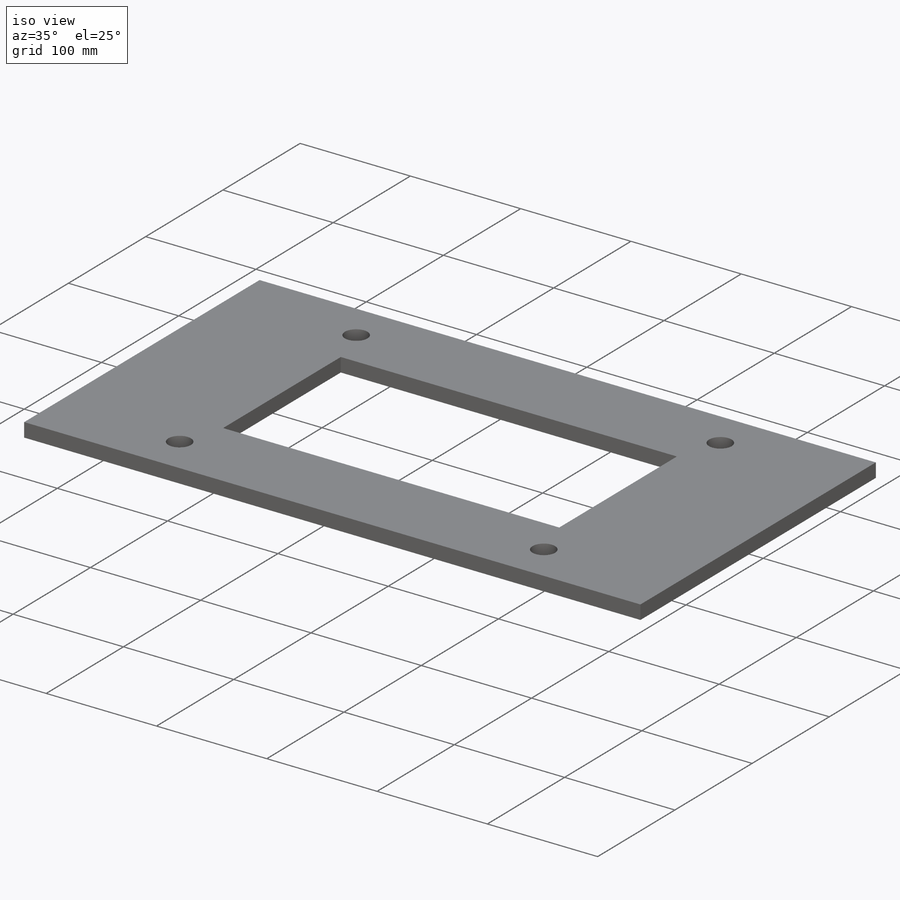
[diagram: iso view]
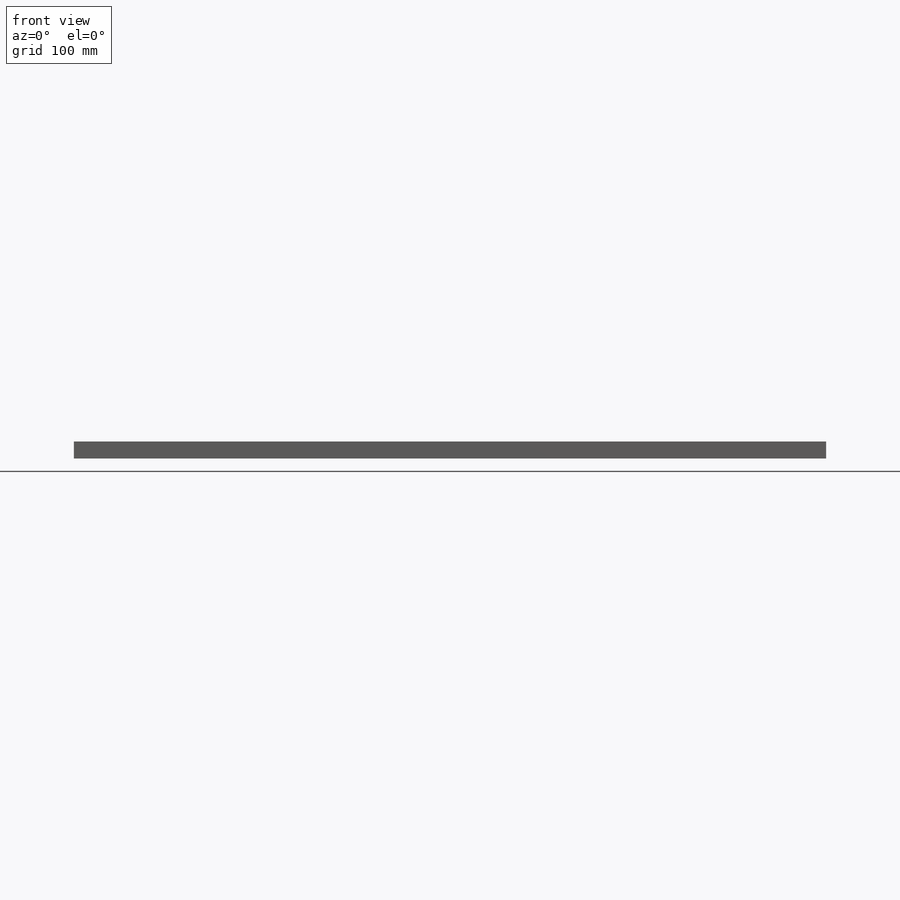
[diagram: front view]
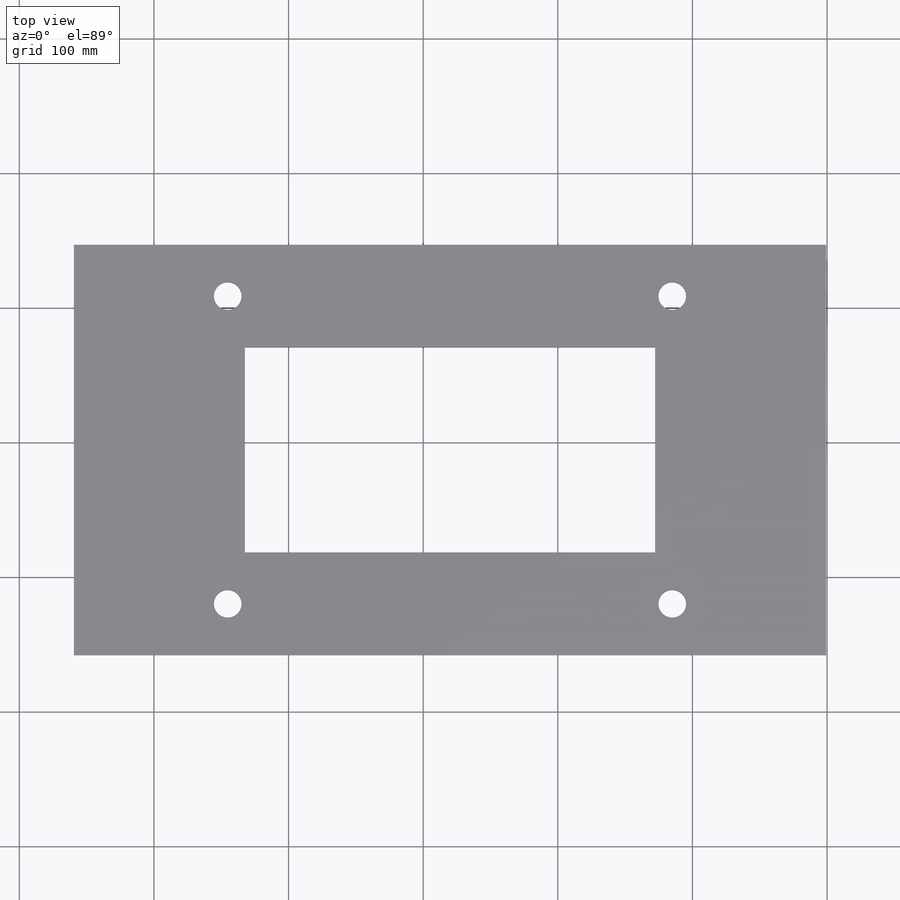
[diagram: top view]
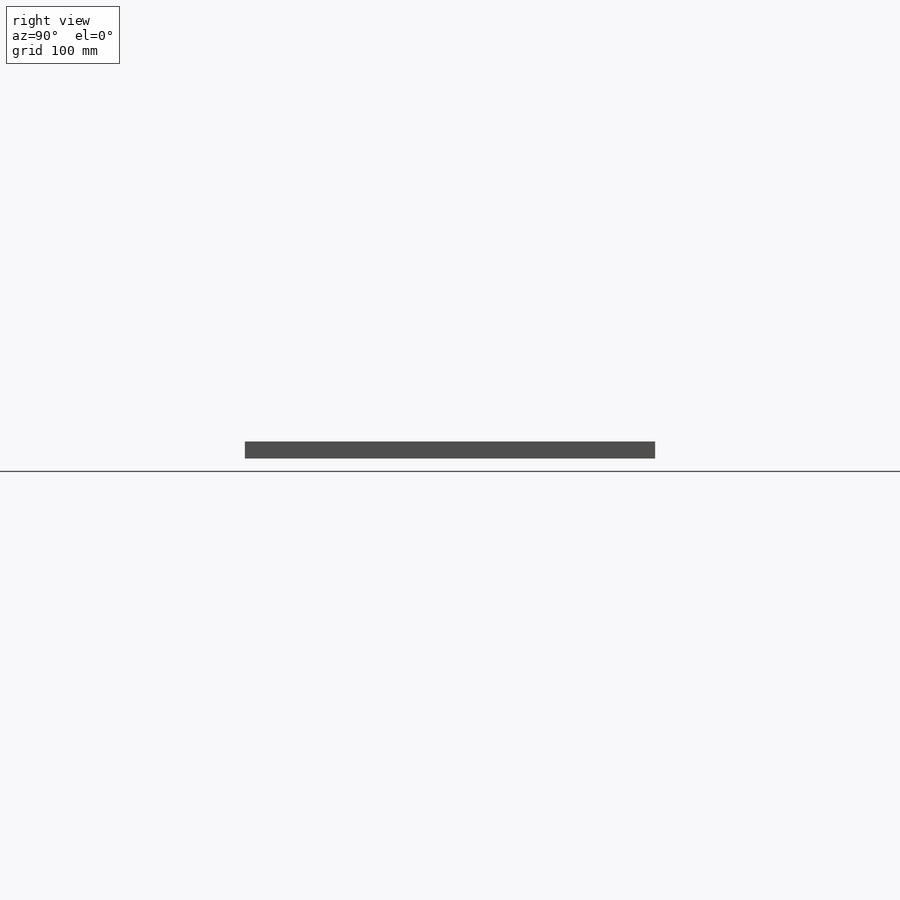
[diagram: right view]
SOLIDWORKS PART (.sldprt)
format: sldprt  version: not decoded by parser v0  size: 176,640 bytes
history: native  units: mm
features: sketch x3, cut_extrude x2, material x1, extrude x1 (+11 scaffold rows collapsed)
feature tree (18):
  scaffold x11  (default folders/planes/origin — collapsed)
  material  "Material <not specified>"
  sketch  "Sketch1"  dims[D1=558.8mm D2=304.8mm]
  extrude  "Boss-Extrude1"  Depth=12.7mm
  sketch  "Sketch2"  dims[c1.D1=19.05mm c1.D2=76.2mm c1.D3=76.2mm c1.D4=76.2mm c1.D5=76.2mm c1.D6=~344.933487mm c2.D2=25.4mm c2.D3=19.05mm c2.D4=76.2mm c2.D5=76.2mm c3.D3=76.2mm c3.D5=76.2mm c3.D1=304.8mm c3.D2=152.4mm c4.D3=127.0mm]
  cut_extrude  "Cut-Extrude1"  Depth=12.7mm
  sketch  "Sketch4"  dims[c1.D1=20.574mm c1.D2=20.574mm c1.D3=20.574mm c1.D4=20.574mm c1.D7=20.574mm c1.D9=20.574mm c1.D10=20.574mm c1.D11=20.574mm c1.D5=20.574mm c1.D12=20.574mm c2.D7=20.574mm c2.D5=38.1mm c2.D6=38.1mm c3.D7=38.1mm c3.D8=38.1mm c3.D9=38.1mm c3.D10=38.1mm c3.D11=38.1mm c3.D12=38.1mm c3.D5=330.2mm c4.D12=88.9mm c4.D7=330.2mm c4.D9=114.3mm]
  cut_extrude  "Cut-Extrude2"  Depth=12.7mm
decode coverage: 6 of 6 modeling features carry decoded parameters
note: ~ marks probable driven/reference dimensions
note: suppression state not decoded; provenance and decode notes live in map.json
